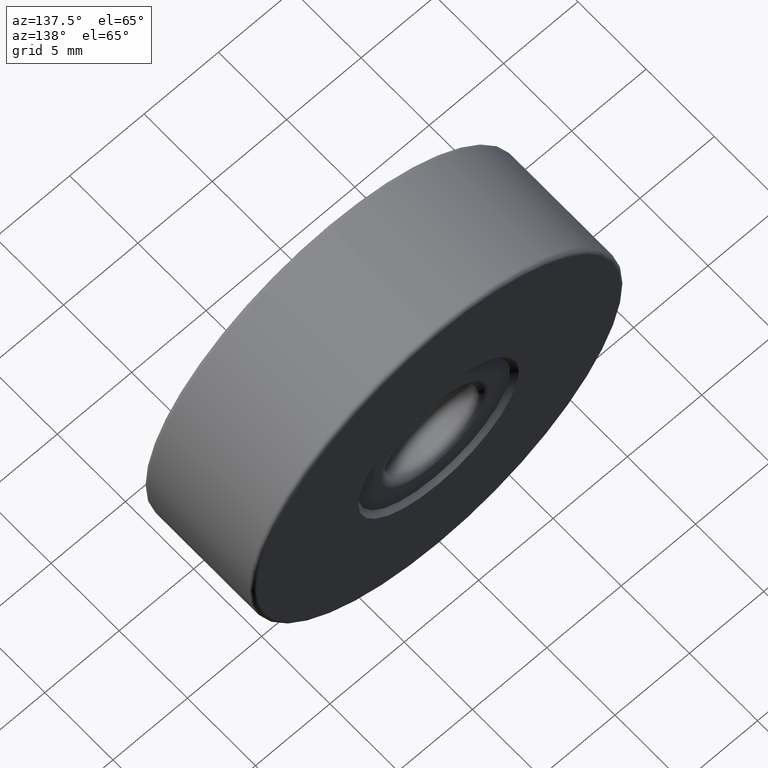
[diagram: clean part render]
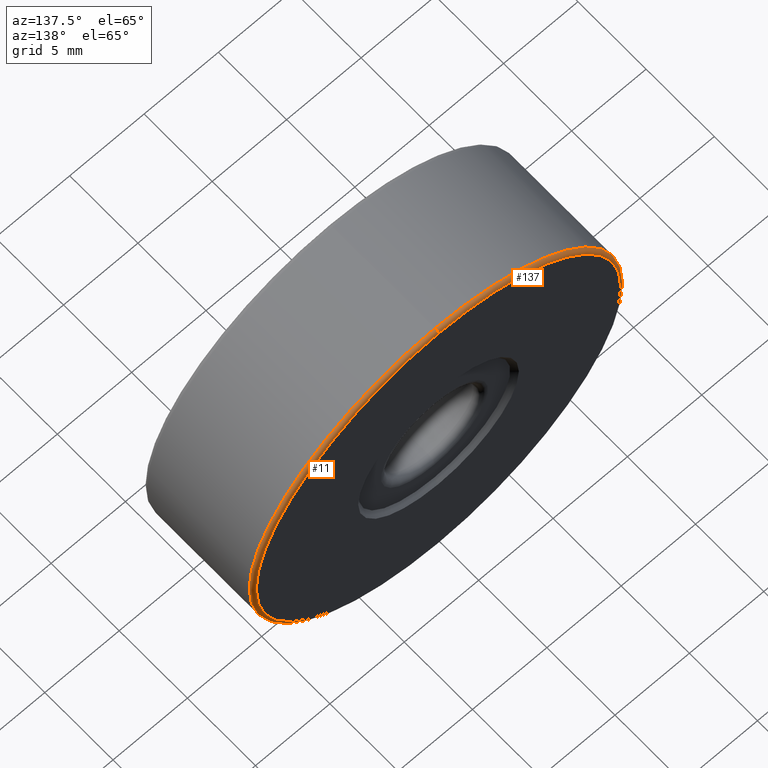
[diagram: same view with one multi-face feature highlighted, each face labeled with its STEP entity id]
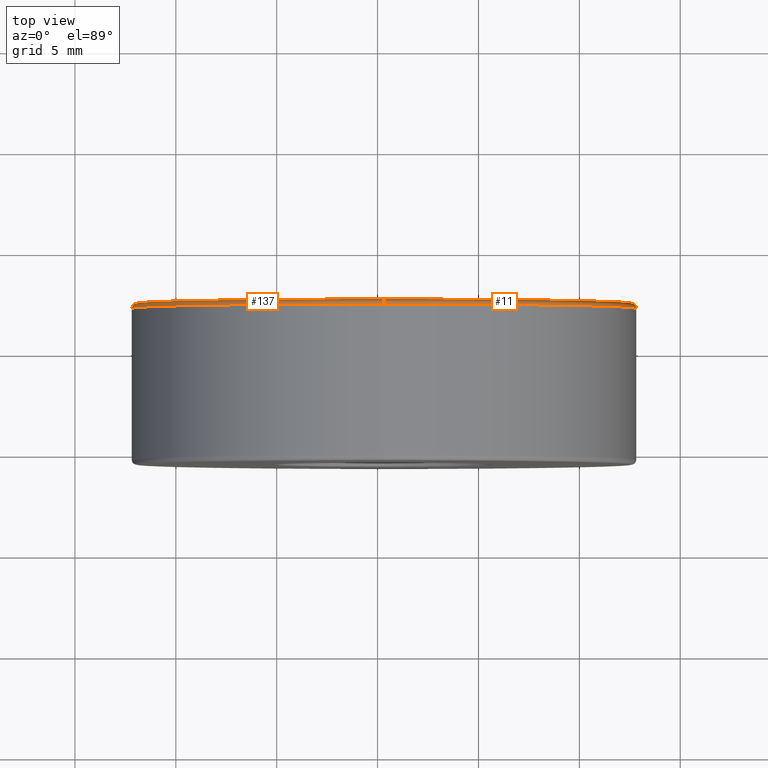
[diagram: same view with one multi-face feature highlighted, each face labeled with its STEP entity id]
A machine part, auxiliary view. The highlighted faces form ONE feature: a constant-radius fillet chain: 2 tangent blend faces with common blend radius 0.25 mm. The faces share edges in the B-rep.
A second angle (top view) of the same feature is appended — it is thin or edge-on in the first view.
Their STEP definitions:
[1] entity #11 (Torus):
#11 = ADVANCED_FACE ( 'NONE', ( #245 ), #228, .T. ) ;
#14 = DIRECTION ( 'NONE',  ( 0.0000000000000000000, 0.0000000000000000000, 1.000000000000000000 ) ) ;
#16 = DIRECTION ( 'NONE',  ( 0.0000000000000000000, 0.0000000000000000000, 1.000000000000000000 ) ) ;
#18 = ORIENTED_EDGE ( 'NONE', *, *, #299, .F. ) ;
#21 = VERTEX_POINT ( 'NONE', #443 ) ;
#59 = DIRECTION ( 'NONE',  ( 0.0000000000000000000, 1.000000000000000000, 0.0000000000000000000 ) ) ;
#72 = CIRCLE ( 'NONE', #539, 0.2500000000000002220 ) ;
#74 = DIRECTION ( 'NONE',  ( 1.000000000000000000, -0.0000000000000000000, 1.224646799147353207E-16 ) ) ;
#81 = DIRECTION ( 'NONE',  ( 0.0000000000000000000, 0.0000000000000000000, 1.000000000000000000 ) ) ;
#83 = EDGE_CURVE ( 'NONE', #198, #329, #427, .T. ) ;
#88 = CARTESIAN_POINT ( 'NONE',  ( -4.682026255059962949, 2.155024023001725020, 37.50000000000000711 ) ) ;
#124 = DIRECTION ( 'NONE',  ( 0.0000000000000000000, 0.0000000000000000000, -1.000000000000000000 ) ) ;
#134 = DIRECTION ( 'NONE',  ( -1.000000000000000000, 0.0000000000000000000, 0.0000000000000000000 ) ) ;
#176 = DIRECTION ( 'NONE',  ( 0.0000000000000000000, 0.0000000000000000000, 1.000000000000000000 ) ) ;
#179 = DIRECTION ( 'NONE',  ( 0.0000000000000000000, 1.000000000000000000, 0.0000000000000000000 ) ) ;
#181 = CARTESIAN_POINT ( 'NONE',  ( -4.682026255059964726, 2.155024023001725020, 37.25000000000000711 ) ) ;
#198 = VERTEX_POINT ( 'NONE', #88 ) ;
#228 = TOROIDAL_SURFACE ( 'NONE', #348, 12.25000000000000000, 0.2500000000000000000 ) ;
#230 = DIRECTION ( 'NONE',  ( -0.0000000000000000000, -1.000000000000000000, -0.0000000000000000000 ) ) ;
#243 = EDGE_LOOP ( 'NONE', ( #18, #528, #475, #354 ) ) ;
#245 = FACE_OUTER_BOUND ( 'NONE', #243, .T. ) ;
#298 = CIRCLE ( 'NONE', #379, 12.50000000000000355 ) ;
#299 = EDGE_CURVE ( 'NONE', #466, #198, #298, .T. ) ;
#313 = CIRCLE ( 'NONE', #570, 12.25000000000000355 ) ;
#329 = VERTEX_POINT ( 'NONE', #344 ) ;
#344 = CARTESIAN_POINT ( 'NONE',  ( -4.682026255059964726, 2.405024023001725020, 37.25000000000000711 ) ) ;
#348 = AXIS2_PLACEMENT_3D ( 'NONE', #489, #59, #16 ) ;
#354 = ORIENTED_EDGE ( 'NONE', *, *, #83, .F. ) ;
#355 = CARTESIAN_POINT ( 'NONE',  ( -4.682026255059964726, 2.405024023001725020, 25.00000000000000000 ) ) ;
#379 = AXIS2_PLACEMENT_3D ( 'NONE', #387, #230, #14 ) ;
#387 = CARTESIAN_POINT ( 'NONE',  ( -4.682026255059964726, 2.155024023001725020, 25.00000000000000000 ) ) ;
#427 = CIRCLE ( 'NONE', #593, 0.2500000000000002220 ) ;
#443 = CARTESIAN_POINT ( 'NONE',  ( -4.682026255059962949, 2.405024023001725020, 12.75000000000000178 ) ) ;
#466 = VERTEX_POINT ( 'NONE', #529 ) ;
#475 = ORIENTED_EDGE ( 'NONE', *, *, #499, .F. ) ;
#489 = CARTESIAN_POINT ( 'NONE',  ( -4.682026255059964726, 2.155024023001725020, 25.00000000000000000 ) ) ;
#499 = EDGE_CURVE ( 'NONE', #329, #21, #313, .T. ) ;
#509 = EDGE_CURVE ( 'NONE', #466, #21, #72, .T. ) ;
#528 = ORIENTED_EDGE ( 'NONE', *, *, #509, .T. ) ;
#529 = CARTESIAN_POINT ( 'NONE',  ( -4.682026255059964726, 2.155024023001725020, 12.50000000000000000 ) ) ;
#539 = AXIS2_PLACEMENT_3D ( 'NONE', #552, #74, #124 ) ;
#552 = CARTESIAN_POINT ( 'NONE',  ( -4.682026255059962949, 2.155024023001725020, 12.75000000000000178 ) ) ;
#570 = AXIS2_PLACEMENT_3D ( 'NONE', #355, #179, #176 ) ;
#593 = AXIS2_PLACEMENT_3D ( 'NONE', #181, #134, #81 ) ;
[2] entity #137 (Torus):
#6 = DIRECTION ( 'NONE',  ( 0.0000000000000000000, 0.0000000000000000000, 1.000000000000000000 ) ) ;
#21 = VERTEX_POINT ( 'NONE', #443 ) ;
#35 = DIRECTION ( 'NONE',  ( 0.0000000000000000000, 0.0000000000000000000, 1.000000000000000000 ) ) ;
#72 = CIRCLE ( 'NONE', #539, 0.2500000000000002220 ) ;
#74 = DIRECTION ( 'NONE',  ( 1.000000000000000000, -0.0000000000000000000, 1.224646799147353207E-16 ) ) ;
#81 = DIRECTION ( 'NONE',  ( 0.0000000000000000000, 0.0000000000000000000, 1.000000000000000000 ) ) ;
#83 = EDGE_CURVE ( 'NONE', #198, #329, #427, .T. ) ;
#88 = CARTESIAN_POINT ( 'NONE',  ( -4.682026255059962949, 2.155024023001725020, 37.50000000000000711 ) ) ;
#98 = CARTESIAN_POINT ( 'NONE',  ( -4.682026255059964726, 2.155024023001725020, 25.00000000000000000 ) ) ;
#100 = CARTESIAN_POINT ( 'NONE',  ( -4.682026255059964726, 2.405024023001725020, 25.00000000000000000 ) ) ;
#124 = DIRECTION ( 'NONE',  ( 0.0000000000000000000, 0.0000000000000000000, -1.000000000000000000 ) ) ;
#134 = DIRECTION ( 'NONE',  ( -1.000000000000000000, 0.0000000000000000000, 0.0000000000000000000 ) ) ;
#137 = ADVANCED_FACE ( 'NONE', ( #606 ), #436, .T. ) ;
#149 = ORIENTED_EDGE ( 'NONE', *, *, #247, .F. ) ;
#172 = CIRCLE ( 'NONE', #589, 12.50000000000000355 ) ;
#180 = DIRECTION ( 'NONE',  ( 0.0000000000000000000, 1.000000000000000000, 0.0000000000000000000 ) ) ;
#181 = CARTESIAN_POINT ( 'NONE',  ( -4.682026255059964726, 2.155024023001725020, 37.25000000000000711 ) ) ;
#183 = AXIS2_PLACEMENT_3D ( 'NONE', #100, #422, #472 ) ;
#198 = VERTEX_POINT ( 'NONE', #88 ) ;
#247 = EDGE_CURVE ( 'NONE', #21, #329, #248, .T. ) ;
#248 = CIRCLE ( 'NONE', #183, 12.25000000000000355 ) ;
#291 = ORIENTED_EDGE ( 'NONE', *, *, #509, .F. ) ;
#329 = VERTEX_POINT ( 'NONE', #344 ) ;
#344 = CARTESIAN_POINT ( 'NONE',  ( -4.682026255059964726, 2.405024023001725020, 37.25000000000000711 ) ) ;
#362 = ORIENTED_EDGE ( 'NONE', *, *, #527, .F. ) ;
#365 = CARTESIAN_POINT ( 'NONE',  ( -4.682026255059964726, 2.155024023001725020, 25.00000000000000000 ) ) ;
#392 = EDGE_LOOP ( 'NONE', ( #291, #362, #438, #149 ) ) ;
#422 = DIRECTION ( 'NONE',  ( 0.0000000000000000000, 1.000000000000000000, 0.0000000000000000000 ) ) ;
#427 = CIRCLE ( 'NONE', #593, 0.2500000000000002220 ) ;
#428 = DIRECTION ( 'NONE',  ( -0.0000000000000000000, -1.000000000000000000, -0.0000000000000000000 ) ) ;
#436 = TOROIDAL_SURFACE ( 'NONE', #565, 12.25000000000000000, 0.2500000000000000000 ) ;
#438 = ORIENTED_EDGE ( 'NONE', *, *, #83, .T. ) ;
#443 = CARTESIAN_POINT ( 'NONE',  ( -4.682026255059962949, 2.405024023001725020, 12.75000000000000178 ) ) ;
#466 = VERTEX_POINT ( 'NONE', #529 ) ;
#472 = DIRECTION ( 'NONE',  ( 0.0000000000000000000, 0.0000000000000000000, 1.000000000000000000 ) ) ;
#509 = EDGE_CURVE ( 'NONE', #466, #21, #72, .T. ) ;
#527 = EDGE_CURVE ( 'NONE', #198, #466, #172, .T. ) ;
#529 = CARTESIAN_POINT ( 'NONE',  ( -4.682026255059964726, 2.155024023001725020, 12.50000000000000000 ) ) ;
#539 = AXIS2_PLACEMENT_3D ( 'NONE', #552, #74, #124 ) ;
#552 = CARTESIAN_POINT ( 'NONE',  ( -4.682026255059962949, 2.155024023001725020, 12.75000000000000178 ) ) ;
#565 = AXIS2_PLACEMENT_3D ( 'NONE', #365, #180, #35 ) ;
#589 = AXIS2_PLACEMENT_3D ( 'NONE', #98, #428, #6 ) ;
#593 = AXIS2_PLACEMENT_3D ( 'NONE', #181, #134, #81 ) ;
#606 = FACE_OUTER_BOUND ( 'NONE', #392, .T. ) ;